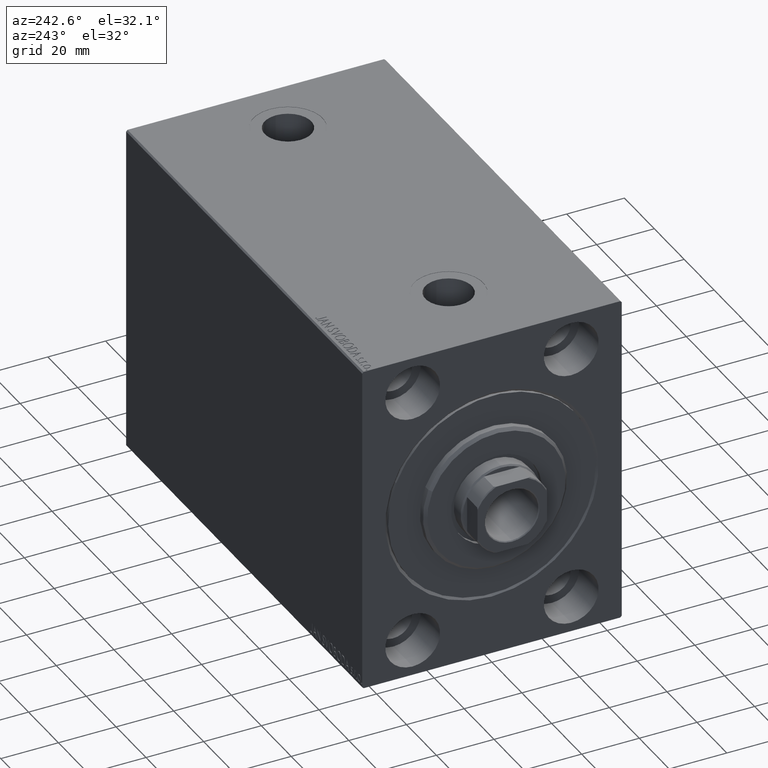
[diagram: clean part render]
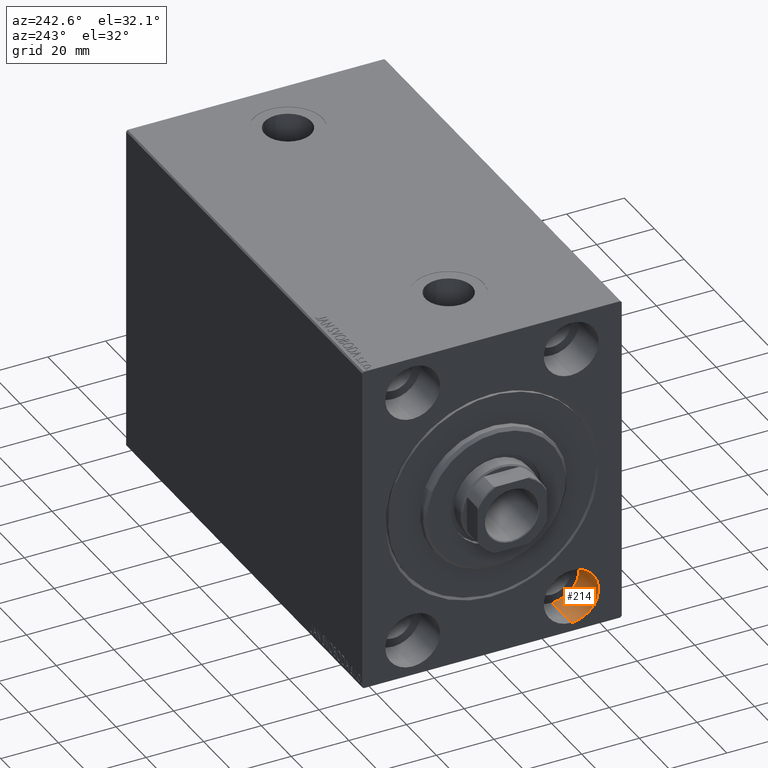
[diagram: same view with one face highlighted and labeled with its STEP entity id]
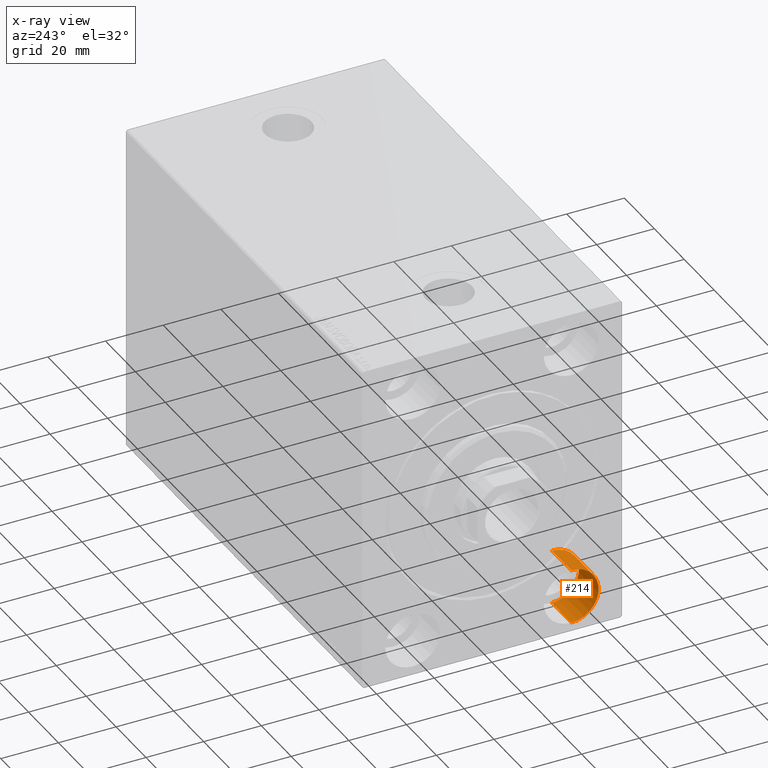
[diagram: x-ray of the same camera — body ghosted, the highlighted face saturated]
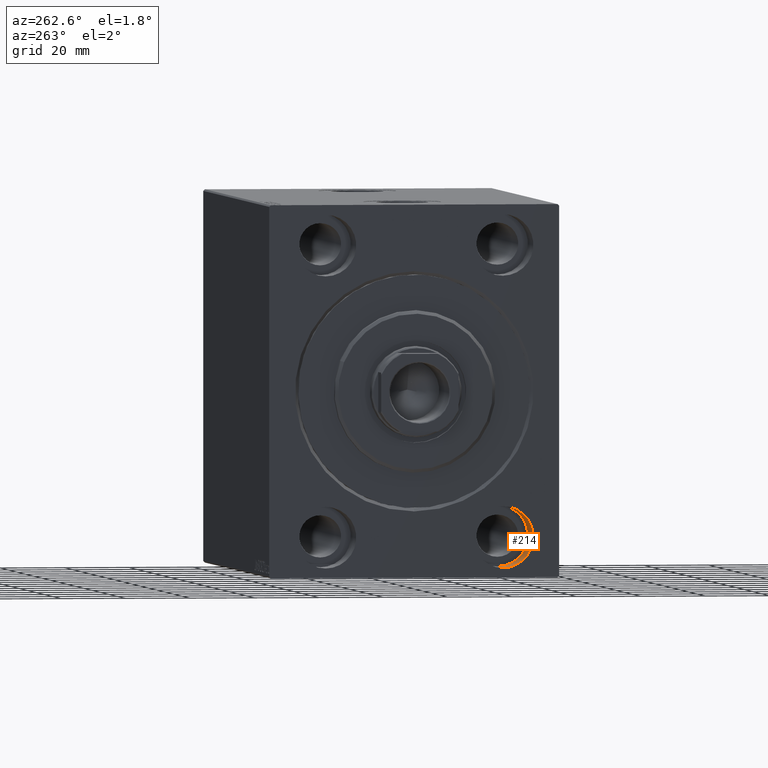
[diagram: same view with one face highlighted and labeled with its STEP entity id]
A machine part, auxiliary view. The second image highlights one B-rep face of the part: STEP entity #214.
The next image is the same camera in x-ray: the body ghosted, the highlighted face saturated — about 0% of this face is hidden behind the body in this view.
A second angle (auxiliary view) of the same face is appended — the face is thin or edge-on in the first view.
In plain terms, the highlighted cylindrical surface (edge-blend (fillet) strip) has radius 9.5 mm, axis along (-1, -0, -0).
Its self-contained STEP definition (entity closure, byte-faithful):
#214 = ADVANCED_FACE ( 'NONE', ( #11620 ), #17856, .F. ) ;
#1850 = LINE ( 'NONE', #29024, #32025 ) ;
#1915 = LINE ( 'NONE', #38924, #37686 ) ;
#3109 = DIRECTION ( 'NONE',  ( -1.000000000000000000, 0.000000000000000000, 0.000000000000000000 ) ) ;
#4939 = CARTESIAN_POINT ( 'NONE',  ( 13.00000000000000000, -27.50000000000000000, -44.99999999999998579 ) ) ;
#5861 = CIRCLE ( 'NONE', #36451, 9.500000000000001776 ) ;
#7721 = CARTESIAN_POINT ( 'NONE',  ( 0.000000000000000000, -27.50000000000000000, -35.49999999999998579 ) ) ;
#8195 = DIRECTION ( 'NONE',  ( -1.000000000000000000, 0.000000000000000000, 0.000000000000000000 ) ) ;
#8374 = DIRECTION ( 'NONE',  ( -1.000000000000000000, -0.000000000000000000, -0.000000000000000000 ) ) ;
#10280 = EDGE_CURVE ( 'NONE', #16063, #22713, #1850, .T. ) ;
#10756 = ORIENTED_EDGE ( 'NONE', *, *, #10280, .T. ) ;
#11325 = CARTESIAN_POINT ( 'NONE',  ( 13.00000000000000000, -27.50000000000000000, -54.49999999999998579 ) ) ;
#11329 = DIRECTION ( 'NONE',  ( 0.000000000000000000, 0.000000000000000000, 1.000000000000000000 ) ) ;
#11620 = FACE_OUTER_BOUND ( 'NONE', #23904, .T. ) ;
#12556 = CARTESIAN_POINT ( 'NONE',  ( 13.00000000000000000, -27.50000000000000000, -35.49999999999998579 ) ) ;
#13771 = ORIENTED_EDGE ( 'NONE', *, *, #22431, .F. ) ;
#16063 = VERTEX_POINT ( 'NONE', #11325 ) ;
#17856 = CYLINDRICAL_SURFACE ( 'NONE', #43995, 9.500000000000001776 ) ;
#19160 = VERTEX_POINT ( 'NONE', #12556 ) ;
#20754 = EDGE_CURVE ( 'NONE', #22713, #43497, #5861, .T. ) ;
#20859 = AXIS2_PLACEMENT_3D ( 'NONE', #4939, #3109, #36988 ) ;
#22431 = EDGE_CURVE ( 'NONE', #16063, #19160, #40777, .T. ) ;
#22713 = VERTEX_POINT ( 'NONE', #32056 ) ;
#23904 = EDGE_LOOP ( 'NONE', ( #13771, #10756, #38552, #24075 ) ) ;
#24075 = ORIENTED_EDGE ( 'NONE', *, *, #40209, .F. ) ;
#28541 = DIRECTION ( 'NONE',  ( -1.000000000000000000, -0.000000000000000000, -0.000000000000000000 ) ) ;
#29024 = CARTESIAN_POINT ( 'NONE',  ( 13.00000000000000000, -27.50000000000000000, -54.49999999999998579 ) ) ;
#32025 = VECTOR ( 'NONE', #43516, 1000.000000000000000 ) ;
#32056 = CARTESIAN_POINT ( 'NONE',  ( 0.000000000000000000, -27.50000000000000000, -54.49999999999998579 ) ) ;
#36451 = AXIS2_PLACEMENT_3D ( 'NONE', #41428, #8195, #11329 ) ;
#36988 = DIRECTION ( 'NONE',  ( 0.000000000000000000, 0.000000000000000000, 1.000000000000000000 ) ) ;
#37686 = VECTOR ( 'NONE', #8374, 1000.000000000000000 ) ;
#38552 = ORIENTED_EDGE ( 'NONE', *, *, #20754, .T. ) ;
#38924 = CARTESIAN_POINT ( 'NONE',  ( 13.00000000000000000, -27.50000000000000000, -35.49999999999998579 ) ) ;
#40209 = EDGE_CURVE ( 'NONE', #19160, #43497, #1915, .T. ) ;
#40777 = CIRCLE ( 'NONE', #20859, 9.500000000000001776 ) ;
#41428 = CARTESIAN_POINT ( 'NONE',  ( 0.000000000000000000, -27.50000000000000000, -44.99999999999998579 ) ) ;
#41499 = DIRECTION ( 'NONE',  ( 0.000000000000000000, 0.000000000000000000, 1.000000000000000000 ) ) ;
#42382 = CARTESIAN_POINT ( 'NONE',  ( 13.00000000000000000, -27.50000000000000000, -44.99999999999998579 ) ) ;
#43497 = VERTEX_POINT ( 'NONE', #7721 ) ;
#43516 = DIRECTION ( 'NONE',  ( -1.000000000000000000, -0.000000000000000000, -0.000000000000000000 ) ) ;
#43995 = AXIS2_PLACEMENT_3D ( 'NONE', #42382, #28541, #41499 ) ;